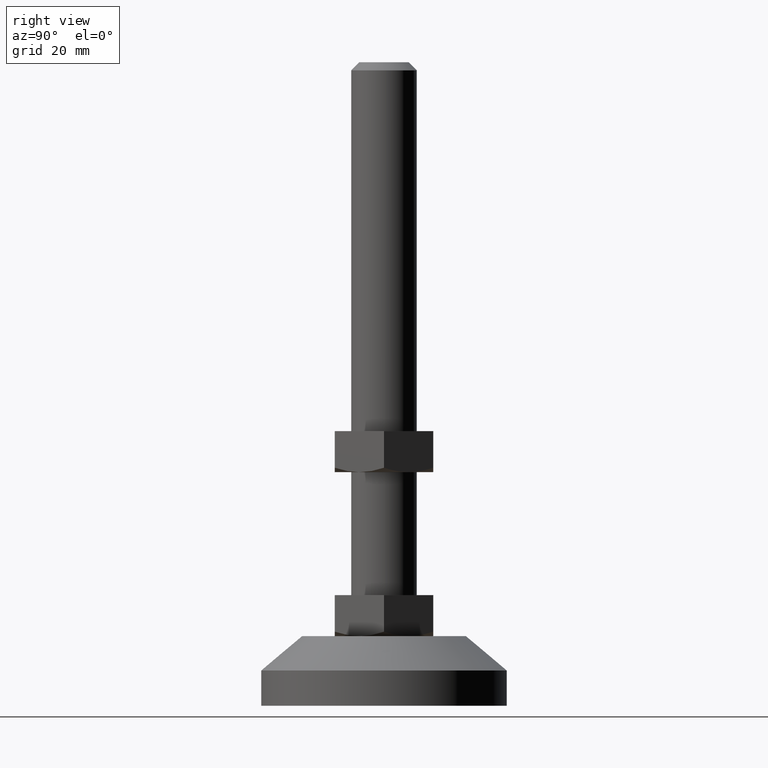
[diagram: clean part render]
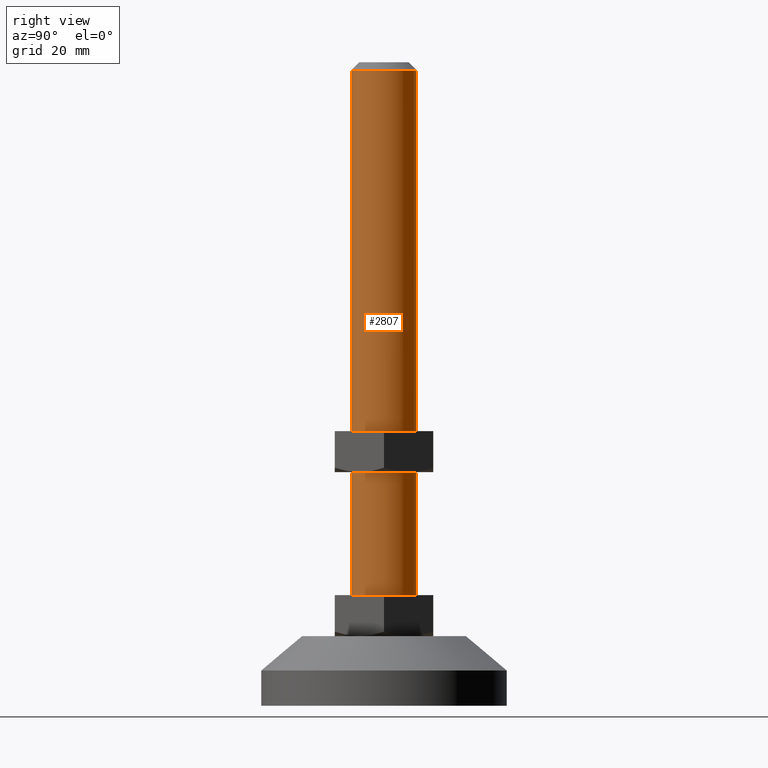
[diagram: same view with one face highlighted and labeled with its STEP entity id]
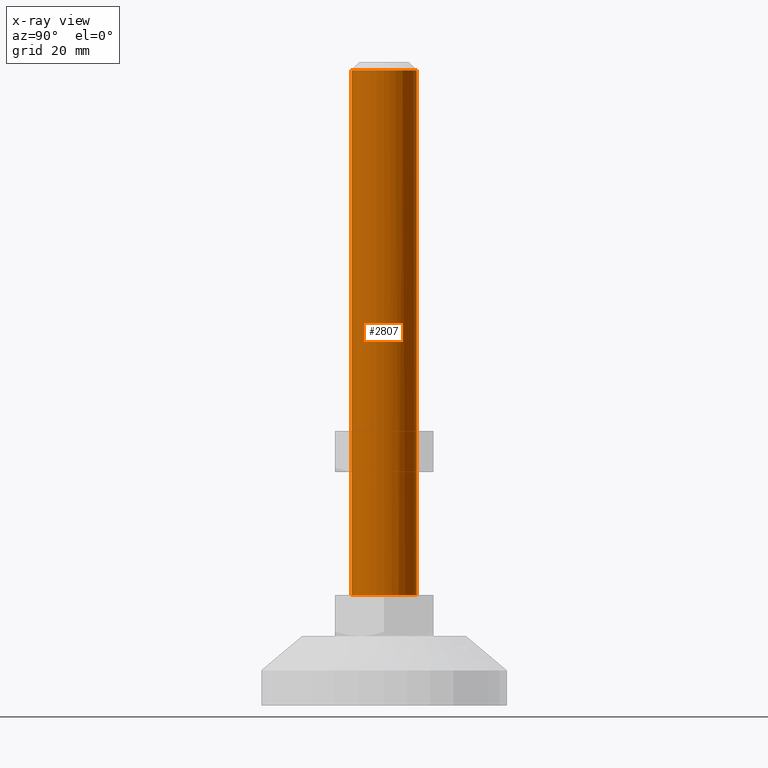
[diagram: x-ray of the same camera — body ghosted, the highlighted face saturated]
A machine part, right view. The second image highlights one B-rep face of the part: STEP entity #2807.
The next image is the same camera in x-ray: the body ghosted, the highlighted face saturated — about 0% of this face is hidden behind the body in this view.
In plain terms, the highlighted face is a freeform B-spline surface patch.
Its self-contained STEP definition (entity closure, byte-faithful):
#2590=CARTESIAN_POINT('',(0.069812285799265,7.999695384737674,154.999999999755600));
#2591=VERTEX_POINT('',#2590);
#2597=CARTESIAN_POINT('',(-0.488376442733946,7.985079113574330,155.0));
#2598=VERTEX_POINT('',#2597);
#2599=CARTESIAN_POINT('',(-0.488376442733946,7.985079113574330,155.0));
#2600=CARTESIAN_POINT('',(-0.302570733332212,7.996444226976017,154.999999999918600));
#2601=CARTESIAN_POINT('',(-0.116336459679876,8.001320729692399,154.999999999837000));
#2602=CARTESIAN_POINT('',(0.069812285799265,7.999695384737674,154.999999999755600));
#2603=B_SPLINE_CURVE_WITH_KNOTS('',3,(#2599,#2600,#2601,#2602),.UNSPECIFIED.,.F.,.U.,(4,4),(0.000000019240903,0.558500553722257),.UNSPECIFIED.);
#2604=EDGE_CURVE('',#2598,#2591,#2603,.T.);
#2640=CARTESIAN_POINT('',(0.488376442733946,-7.985079113574330,155.0));
#2641=VERTEX_POINT('',#2640);
#2649=CARTESIAN_POINT('',(8.0,0.0,155.0));
#2650=VERTEX_POINT('',#2649);
#2651=CARTESIAN_POINT('',(8.0,0.0,155.0));
#2652=CARTESIAN_POINT('',(7.999999999999730,-7.525659746547362,154.999999999999940));
#2653=CARTESIAN_POINT('',(0.488376442733946,-7.985079113574330,155.0));
#2661=(BOUNDED_CURVE()B_SPLINE_CURVE(2,(#2651,#2652,#2653),.UNSPECIFIED.,.F.,.U.)B_SPLINE_CURVE_WITH_KNOTS((3,3),(0.0,0.239333218813332),.UNSPECIFIED.)CURVE()GEOMETRIC_REPRESENTATION_ITEM()RATIONAL_B_SPLINE_CURVE((1.0,0.719603692691116,0.976072591555091))REPRESENTATION_ITEM(''));
#2662=EDGE_CURVE('',#2650,#2641,#2661,.T.);
#2664=CARTESIAN_POINT('',(0.069812285799265,7.999695384737674,154.999999999755600));
#2665=CARTESIAN_POINT('',(8.000000000001338,7.930489683086028,154.999999999877820));
#2666=CARTESIAN_POINT('',(8.0,0.0,155.0));
#2674=(BOUNDED_CURVE()B_SPLINE_CURVE(2,(#2664,#2665,#2666),.UNSPECIFIED.,.F.,.U.)B_SPLINE_CURVE_WITH_KNOTS((3,3),(0.751539894374832,1.0),.UNSPECIFIED.)CURVE()GEOMETRIC_REPRESENTATION_ITEM()RATIONAL_B_SPLINE_CURVE((0.996414028008194,0.708910879666856,1.0))REPRESENTATION_ITEM(''));
#2675=EDGE_CURVE('',#2591,#2650,#2674,.T.);
#2702=CARTESIAN_POINT('',(0.488376294023153,-7.985079122669426,26.999999999999989));
#2703=VERTEX_POINT('',#2702);
#2721=CARTESIAN_POINT('',(0.488376442733946,-7.985079113574330,155.0));
#2722=CARTESIAN_POINT('',(0.488376294023153,-7.985079122669426,26.999999999999989));
#2723=QUASI_UNIFORM_CURVE('',1,(#2721,#2722),.UNSPECIFIED.,.F.,.U.);
#2724=EDGE_CURVE('',#2641,#2703,#2723,.T.);
#2729=CARTESIAN_POINT('',(-0.488376294023154,7.985079122669426,26.999999999999989));
#2730=VERTEX_POINT('',#2729);
#2731=CARTESIAN_POINT('',(-0.488376442733946,7.985079113574330,155.0));
#2732=CARTESIAN_POINT('',(-0.488376294023154,7.985079122669426,26.999999999999989));
#2733=QUASI_UNIFORM_CURVE('',1,(#2731,#2732),.UNSPECIFIED.,.F.,.U.);
#2734=EDGE_CURVE('',#2598,#2730,#2733,.T.);
#2752=CARTESIAN_POINT('',(-0.488388316278856,7.985078387374934,158.200000000000100));
#2753=CARTESIAN_POINT('',(7.496690071096078,8.473466703653790,158.200000000000100));
#2754=CARTESIAN_POINT('',(7.985078387374934,0.488388316278856,158.200000000000100));
#2755=CARTESIAN_POINT('',(8.473466703653790,-7.496690071096078,158.200000000000100));
#2756=CARTESIAN_POINT('',(0.488388316278856,-7.985078387374934,158.200000000000100));
#2757=CARTESIAN_POINT('',(-0.488388316278856,7.985078387374934,23.719999999999999));
#2758=CARTESIAN_POINT('',(7.496690071096078,8.473466703653790,23.720000000000002));
#2759=CARTESIAN_POINT('',(7.985078387374934,0.488388316278856,23.719999999999999));
#2760=CARTESIAN_POINT('',(8.473466703653790,-7.496690071096078,23.720000000000002));
#2761=CARTESIAN_POINT('',(0.488388316278856,-7.985078387374934,23.719999999999999));
#2769=(BOUNDED_SURFACE()B_SPLINE_SURFACE(2,1,((#2752,#2757),(#2753,#2758),(#2754,#2759),(#2755,#2760),(#2756,#2761)),.UNSPECIFIED.,.F.,.F.,.U.)B_SPLINE_SURFACE_WITH_KNOTS((3,2,3),(2,2),(0.0,13.254833995939039,26.509667991878072),(0.0,134.480000000000100),.UNSPECIFIED.)GEOMETRIC_REPRESENTATION_ITEM()RATIONAL_B_SPLINE_SURFACE(((1.0,1.0),(0.707106781186548,0.707106781186548),(1.0,1.0),(0.707106781186548,0.707106781186548),(1.0,1.0)))REPRESENTATION_ITEM('')SURFACE());
#2770=CARTESIAN_POINT('',(8.0,0.0,27.0));
#2771=VERTEX_POINT('',#2770);
#2772=CARTESIAN_POINT('',(8.0,0.0,27.0));
#2773=CARTESIAN_POINT('',(7.999999999999724,-7.525659886963888,27.0));
#2774=CARTESIAN_POINT('',(0.488376294023153,-7.985079122669426,26.999999999999993));
#2782=(BOUNDED_CURVE()B_SPLINE_CURVE(2,(#2772,#2773,#2774),.UNSPECIFIED.,.F.,.U.)B_SPLINE_CURVE_WITH_KNOTS((3,3),(0.0,0.239333222026773),.UNSPECIFIED.)CURVE()GEOMETRIC_REPRESENTATION_ITEM()RATIONAL_B_SPLINE_CURVE((1.0,0.719603688926335,0.976072598442123))REPRESENTATION_ITEM(''));
#2783=EDGE_CURVE('',#2771,#2703,#2782,.T.);
#2784=ORIENTED_EDGE('',*,*,#2783,.F.);
#2785=CARTESIAN_POINT('',(-0.488376294023154,7.985079122669426,26.999999999999993));
#2786=CARTESIAN_POINT('',(-0.244416078406390,7.999999999991079,26.999999999999996));
#2787=CARTESIAN_POINT('',(5.372002E-013,7.999999999991218,26.999999999999989));
#2788=CARTESIAN_POINT('',(8.000000000000259,7.999999999995745,26.999999999999996));
#2789=CARTESIAN_POINT('',(8.0,0.0,27.0));
#2797=(BOUNDED_CURVE()B_SPLINE_CURVE(2,(#2785,#2786,#2787,#2788,#2789),.UNSPECIFIED.,.F.,.U.)B_SPLINE_CURVE_WITH_KNOTS((3,2,3),(0.739333222026773,0.750000000000000,1.0),.UNSPECIFIED.)CURVE()GEOMETRIC_REPRESENTATION_ITEM()RATIONAL_B_SPLINE_CURVE((0.976072598442123,0.987503092260212,1.0,0.707106781186548,1.0))REPRESENTATION_ITEM(''));
#2798=EDGE_CURVE('',#2730,#2771,#2797,.T.);
#2799=ORIENTED_EDGE('',*,*,#2798,.F.);
#2800=ORIENTED_EDGE('',*,*,#2734,.F.);
#2801=ORIENTED_EDGE('',*,*,#2604,.T.);
#2802=ORIENTED_EDGE('',*,*,#2675,.T.);
#2803=ORIENTED_EDGE('',*,*,#2662,.T.);
#2804=ORIENTED_EDGE('',*,*,#2724,.T.);
#2805=EDGE_LOOP('',(#2784,#2799,#2800,#2801,#2802,#2803,#2804));
#2806=FACE_OUTER_BOUND('',#2805,.T.);
#2807=ADVANCED_FACE('',(#2806),#2769,.T.);